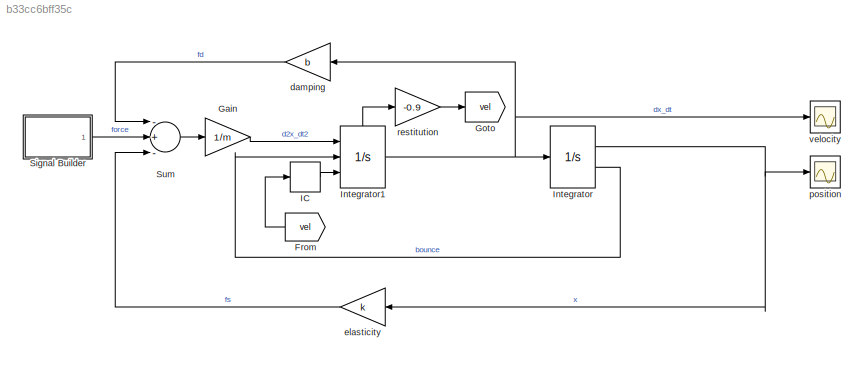
MODEL slx_b33cc6bff35c
KIND model
CONFIG AbsTol = auto
CONFIG EnableMultiTasking = on
CONFIG FixedStep = auto
CONFIG InitFcn = k = 4.9; b = 1.8; m = 1;
CONFIG MaxStep = auto
CONFIG MinStep = auto
CONFIG RelTol = 1e-3
CONFIG SampleTimeConstraint = Unconstrained
CONFIG Solver = ode45
CONFIG SolverName = ode45
CONFIG StartTime = 0.0
CONFIG StopTime = 10.0
BLOCK [From] From
  GotoTag = vel
BLOCK [Gain] Gain
  Gain = 1/m
BLOCK [Goto] Goto
  GotoTag = vel
BLOCK [InitialCondition] IC
  Value = 0
BLOCK [Integrator] Integrator
  AttributesFormatString = x0 = %<InitialCondition>\nx >= %<LowerSaturationLimit>\n
  LimitOutput = on
  LowerSaturationLimit = 0
  Ports = [1, 2]
  ShowSaturationPort = on
BLOCK [Integrator] Integrator1
  AttributesFormatString = v0 = %<InitialCondition>\n
  ExternalReset = falling
  InitialConditionSource = external
  Ports = [3, 1, 0, 0, 1]
  ShowStatePort = on
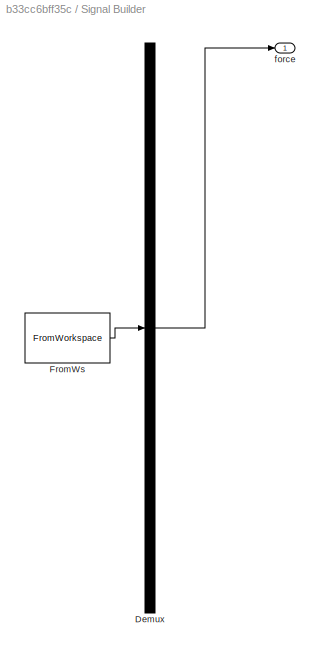
BLOCK [SubSystem] Signal Builder
  ClipboardFcn = sigbuilder_block('clipboard');
  CloseFcn = sigbuilder_block('close');
  ContinueFcn = sigbuilder_block('continue')
  CopyFcn = sigbuilder_block('copy');
  DeleteFcn = sigbuilder_block('delete');
  LoadFcn = sigbuilder_block('load');
  MaskHideContents = on
  ModelCloseFcn = sigbuilder_block('modelClose');
  NameChangeFcn = sigbuilder_block('namechange');
  OpenFcn = sigbuilder_block('open',[81.75 99.75 519.75 399.75 ]);
  PauseFcn = sigbuilder_block('pause')
  Ports = [0, 1]
  PreSaveFcn = sigbuilder_block('preSave');
  RequestExecContextInheritance = off
  StartFcn = sigbuilder_block('start');
  StopFcn = sigbuilder_block('stop');
  Tag = STV Subsys
BLOCK [Demux] Signal Builder/Demux
  Outputs = 1
  Ports = [1, 1]
  Tag = STV Demux
BLOCK [FromWorkspace] Signal Builder/FromWs
  SampleTime = 0
  Tag = STV FromWs
  VariableName = tuvar
BLOCK [Outport] Signal Builder/force
  IconDisplay = Port number
  Tag = STV Outport
BLOCK [Sum] Sum
  InputSameDT = off
  Inputs = -+-
  OutDataTypeStr = Inherit: Inherit via internal rule
  Ports = [3, 1]
BLOCK [Gain] damping
  Gain = b
BLOCK [Gain] elasticity
  Gain = k
BLOCK [Scope] position
  Floating = off
  NumInputPorts = 1
  Ports = [1]
  ScopeSpecificationString = Simulink.scopes.TimeScopeBlockCfg('CurrentConfiguration', extmgr.ConfigurationSet(extmgr.Configuration('Core','General UI',true),extmgr.Configuration('Core','Source UI',true),extmgr.Configuration('Sources','WiredSimulink',true,'DataLoggingSaveFormat','StructureWithTime','DataLoggingLimitDataPoints',true,'DataLoggingDecimation','1','DataLoggingDecimateData',true),extmgr.Configuration('Visuals','Tim...<+1829ch>
BLOCK [Gain] restitution
  Gain = -0.9
BLOCK [Scope] velocity
  Floating = off
  NumInputPorts = 1
  Ports = [1]
  ScopeSpecificationString = Simulink.scopes.TimeScopeBlockCfg('CurrentConfiguration', extmgr.ConfigurationSet(extmgr.Configuration('Core','General UI',true),extmgr.Configuration('Core','Source UI',true),extmgr.Configuration('Sources','WiredSimulink',true,'DataLoggingVariableName','ScopeData1','DataLoggingSaveFormat','StructureWithTime','DataLoggingLimitDataPoints',true,'DataLoggingDecimation','1','DataLoggingDecimateData',tr...<+1872ch>
LINE From:1 -> IC:1
LINE Gain:1 -> Integrator1:1
LINE IC:1 -> Integrator1:3
NET Integrator1:1 -> Integrator:1, damping:1, velocity:1
LINE Integrator1:state -> restitution:1
NET Integrator:1 -> elasticity:1, position:1
LINE Integrator:2 -> Integrator1:2
LINE Signal Builder/Demux:1 -> Signal Builder/force:1
LINE Signal Builder/FromWs:1 -> Signal Builder/Demux:1
LINE Signal Builder:1 -> Sum:2
LINE Sum:1 -> Gain:1
LINE damping:1 -> Sum:1
LINE elasticity:1 -> Sum:3
LINE restitution:1 -> Goto:1
note: NET lines group one-source signal fan-out (src -> all destinations, sorted); 1:1 wires keep LINE
